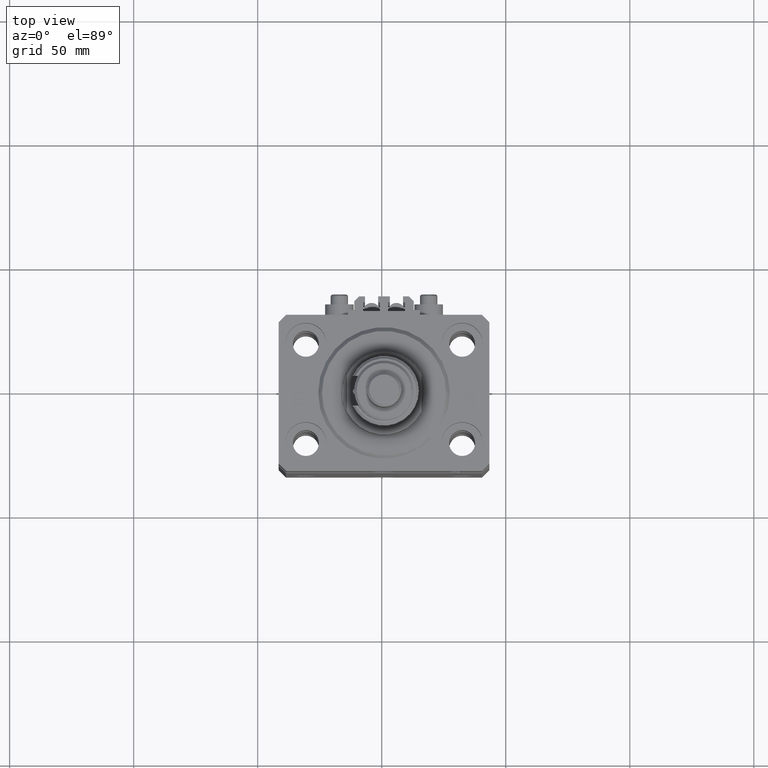
[diagram: clean part render]
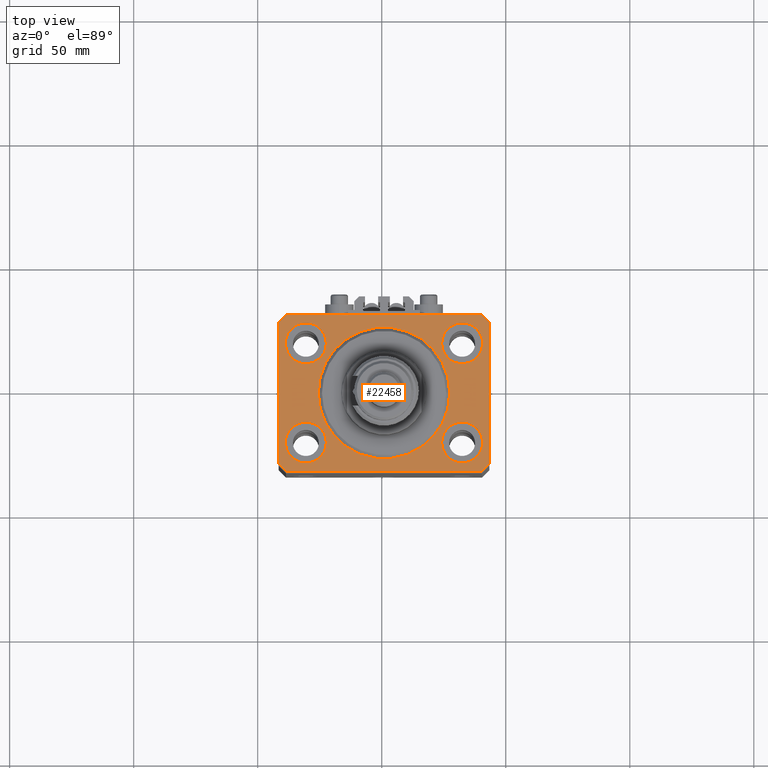
[diagram: same view with one face highlighted and labeled with its STEP entity id]
A machine part, top view. The second image highlights one B-rep face of the part: STEP entity #22458.
In plain terms, the highlighted planar face has unit normal (0, 0, 1).
Its self-contained STEP definition (entity closure, byte-faithful):
#40 = ORIENTED_EDGE ( 'NONE', *, *, #21736, .F. ) ;
#351 = CARTESIAN_POINT ( 'NONE',  ( 23.25000000000000355, 20.00000000000001066, 0.000000000000000000 ) ) ;
#473 = FACE_BOUND ( 'NONE', #27221, .T. ) ;
#603 = CARTESIAN_POINT ( 'NONE',  ( 39.50000000000000711, -31.50000000000000000, 0.000000000000000000 ) ) ;
#1393 = VERTEX_POINT ( 'NONE', #603 ) ;
#1399 = VERTEX_POINT ( 'NONE', #41322 ) ;
#1612 = CARTESIAN_POINT ( 'NONE',  ( 39.50000000000056843, 31.50000000000000000, 0.000000000000000000 ) ) ;
#1646 = CARTESIAN_POINT ( 'NONE',  ( -39.75000000000000000, -20.00000000000000000, 0.000000000000000000 ) ) ;
#2142 = ORIENTED_EDGE ( 'NONE', *, *, #19518, .F. ) ;
#2526 = VERTEX_POINT ( 'NONE', #1646 ) ;
#3470 = EDGE_CURVE ( 'NONE', #17507, #26038, #37037, .T. ) ;
#4547 = CIRCLE ( 'NONE', #31584, 8.250000000000000000 ) ;
#4761 = ORIENTED_EDGE ( 'NONE', *, *, #51596, .T. ) ;
#5395 = CARTESIAN_POINT ( 'NONE',  ( 42.50000000000051870, 28.49999999999995381, 0.000000000000000000 ) ) ;
#5596 = DIRECTION ( 'NONE',  ( 0.7071067811865471286, -0.7071067811865479058, 0.000000000000000000 ) ) ;
#5973 = EDGE_CURVE ( 'NONE', #30997, #28055, #33611, .T. ) ;
#6270 = DIRECTION ( 'NONE',  ( 1.000000000000000000, 0.000000000000000000, 0.000000000000000000 ) ) ;
#6455 = AXIS2_PLACEMENT_3D ( 'NONE', #34443, #25982, #50829 ) ;
#6528 = ORIENTED_EDGE ( 'NONE', *, *, #33068, .T. ) ;
#6582 = AXIS2_PLACEMENT_3D ( 'NONE', #10785, #7348, #47267 ) ;
#6803 = CARTESIAN_POINT ( 'NONE',  ( 39.50000000000000711, -31.50000000000000000, 0.000000000000000000 ) ) ;
#7240 = DIRECTION ( 'NONE',  ( 0.000000000000000000, 0.000000000000000000, 1.000000000000000000 ) ) ;
#7348 = DIRECTION ( 'NONE',  ( 0.000000000000000000, 0.000000000000000000, 1.000000000000000000 ) ) ;
#7559 = DIRECTION ( 'NONE',  ( 0.000000000000000000, 0.000000000000000000, 1.000000000000000000 ) ) ;
#8147 = VERTEX_POINT ( 'NONE', #42236 ) ;
#8152 = VERTEX_POINT ( 'NONE', #22138 ) ;
#8155 = CARTESIAN_POINT ( 'NONE',  ( -23.25000000000000000, 20.00000000000000000, 0.000000000000000000 ) ) ;
#8461 = VERTEX_POINT ( 'NONE', #351 ) ;
#8774 = EDGE_CURVE ( 'NONE', #31759, #1393, #24103, .T. ) ;
#9598 = ORIENTED_EDGE ( 'NONE', *, *, #8774, .T. ) ;
#9760 = CARTESIAN_POINT ( 'NONE',  ( 31.50000000000000000, 20.00000000000001066, 0.000000000000000000 ) ) ;
#10785 = CARTESIAN_POINT ( 'NONE',  ( 31.50000000000000000, -20.00000000000000000, 0.000000000000000000 ) ) ;
#10794 = DIRECTION ( 'NONE',  ( 1.000000000000000000, 0.000000000000000000, 0.000000000000000000 ) ) ;
#10932 = EDGE_LOOP ( 'NONE', ( #11153, #27754, #39970, #12039, #9598, #4761, #11896, #6528 ) ) ;
#11153 = ORIENTED_EDGE ( 'NONE', *, *, #5973, .T. ) ;
#11896 = ORIENTED_EDGE ( 'NONE', *, *, #3470, .T. ) ;
#12039 = ORIENTED_EDGE ( 'NONE', *, *, #19906, .T. ) ;
#12512 = VECTOR ( 'NONE', #29454, 1000.000000000000114 ) ;
#12630 = FACE_BOUND ( 'NONE', #21557, .T. ) ;
#12999 = AXIS2_PLACEMENT_3D ( 'NONE', #35036, #19954, #15205 ) ;
#14126 = CARTESIAN_POINT ( 'NONE',  ( -39.50000000000000711, 31.50000000000000000, 0.000000000000000000 ) ) ;
#14855 = ORIENTED_EDGE ( 'NONE', *, *, #24727, .F. ) ;
#15205 = DIRECTION ( 'NONE',  ( 1.000000000000000000, 0.000000000000000000, 0.000000000000000000 ) ) ;
#15556 = CARTESIAN_POINT ( 'NONE',  ( -42.50000000000000000, 28.50000000000000000, 0.000000000000000000 ) ) ;
#15558 = CARTESIAN_POINT ( 'NONE',  ( 0.000000000000000000, 0.000000000000000000, 0.000000000000000000 ) ) ;
#15578 = CIRCLE ( 'NONE', #29048, 8.250000000000000000 ) ;
#15736 = CIRCLE ( 'NONE', #6455, 8.250000000000000000 ) ;
#15767 = VERTEX_POINT ( 'NONE', #37650 ) ;
#16434 = CARTESIAN_POINT ( 'NONE',  ( 42.50000000000000711, -28.50000000000000355, 0.000000000000000000 ) ) ;
#16596 = FACE_BOUND ( 'NONE', #38562, .T. ) ;
#16622 = VERTEX_POINT ( 'NONE', #47721 ) ;
#16882 = VECTOR ( 'NONE', #24888, 1000.000000000000000 ) ;
#17507 = VERTEX_POINT ( 'NONE', #45058 ) ;
#18418 = EDGE_CURVE ( 'NONE', #28055, #45527, #42424, .T. ) ;
#18771 = ORIENTED_EDGE ( 'NONE', *, *, #42308, .F. ) ;
#18835 = VERTEX_POINT ( 'NONE', #49221 ) ;
#18874 = AXIS2_PLACEMENT_3D ( 'NONE', #44704, #21158, #29351 ) ;
#19518 = EDGE_CURVE ( 'NONE', #8147, #18835, #34889, .T. ) ;
#19717 = AXIS2_PLACEMENT_3D ( 'NONE', #51458, #39055, #6270 ) ;
#19906 = EDGE_CURVE ( 'NONE', #16622, #31759, #35308, .T. ) ;
#19954 = DIRECTION ( 'NONE',  ( 0.000000000000000000, 0.000000000000000000, 1.000000000000000000 ) ) ;
#20463 = EDGE_CURVE ( 'NONE', #45527, #16622, #23755, .T. ) ;
#20849 = EDGE_LOOP ( 'NONE', ( #29794, #45590 ) ) ;
#21042 = CARTESIAN_POINT ( 'NONE',  ( -31.50000000000000000, 20.00000000000000000, 0.000000000000000000 ) ) ;
#21158 = DIRECTION ( 'NONE',  ( 0.000000000000000000, 0.000000000000000000, 1.000000000000000000 ) ) ;
#21557 = EDGE_LOOP ( 'NONE', ( #14855, #21681 ) ) ;
#21681 = ORIENTED_EDGE ( 'NONE', *, *, #46703, .F. ) ;
#21736 = EDGE_CURVE ( 'NONE', #8152, #50446, #4547, .T. ) ;
#22058 = LINE ( 'NONE', #5395, #12512 ) ;
#22138 = CARTESIAN_POINT ( 'NONE',  ( -39.75000000000000000, 20.00000000000000000, 0.000000000000000000 ) ) ;
#22275 = CIRCLE ( 'NONE', #51809, 8.249999999999992895 ) ;
#22458 = ADVANCED_FACE ( 'NONE', ( #36688, #473, #12630, #16596, #51773, #32726 ), #48847, .T. ) ;
#22846 = DIRECTION ( 'NONE',  ( -0.7071067811865471286, -0.7071067811865479058, 0.000000000000000000 ) ) ;
#22970 = DIRECTION ( 'NONE',  ( 0.000000000000000000, 0.000000000000000000, 1.000000000000000000 ) ) ;
#23430 = EDGE_CURVE ( 'NONE', #18835, #8147, #32377, .T. ) ;
#23755 = LINE ( 'NONE', #15556, #24790 ) ;
#24103 = LINE ( 'NONE', #24353, #24557 ) ;
#24174 = CARTESIAN_POINT ( 'NONE',  ( 23.25000000000000355, -20.00000000000000000, 0.000000000000000000 ) ) ;
#24353 = CARTESIAN_POINT ( 'NONE',  ( -39.50000000000000711, -31.50000000000000000, 0.000000000000000000 ) ) ;
#24557 = VECTOR ( 'NONE', #41015, 1000.000000000000000 ) ;
#24727 = EDGE_CURVE ( 'NONE', #41060, #8461, #44271, .T. ) ;
#24754 = VECTOR ( 'NONE', #5596, 1000.000000000000000 ) ;
#24790 = VECTOR ( 'NONE', #35899, 1000.000000000000000 ) ;
#24888 = DIRECTION ( 'NONE',  ( 8.886653596232072440E-15, 1.000000000000000000, 0.000000000000000000 ) ) ;
#25695 = CARTESIAN_POINT ( 'NONE',  ( -42.50000000000000000, -28.50000000000000000, 0.000000000000000000 ) ) ;
#25881 = DIRECTION ( 'NONE',  ( 0.000000000000000000, 0.000000000000000000, 1.000000000000000000 ) ) ;
#25982 = DIRECTION ( 'NONE',  ( 0.000000000000000000, 0.000000000000000000, 1.000000000000000000 ) ) ;
#26038 = VERTEX_POINT ( 'NONE', #41628 ) ;
#26778 = ORIENTED_EDGE ( 'NONE', *, *, #30866, .F. ) ;
#27221 = EDGE_LOOP ( 'NONE', ( #18771, #27466 ) ) ;
#27398 = CARTESIAN_POINT ( 'NONE',  ( -31.50000000000000000, 20.00000000000000000, 0.000000000000000000 ) ) ;
#27466 = ORIENTED_EDGE ( 'NONE', *, *, #32477, .F. ) ;
#27676 = CIRCLE ( 'NONE', #6582, 8.249999999999992895 ) ;
#27754 = ORIENTED_EDGE ( 'NONE', *, *, #18418, .T. ) ;
#28055 = VERTEX_POINT ( 'NONE', #31509 ) ;
#28656 = VECTOR ( 'NONE', #30178, 1000.000000000000000 ) ;
#29048 = AXIS2_PLACEMENT_3D ( 'NONE', #47167, #7240, #39496 ) ;
#29351 = DIRECTION ( 'NONE',  ( 1.000000000000000000, 0.000000000000000000, 0.000000000000000000 ) ) ;
#29454 = DIRECTION ( 'NONE',  ( -0.7071067811865356934, 0.7071067811865594521, 0.000000000000000000 ) ) ;
#29794 = ORIENTED_EDGE ( 'NONE', *, *, #51228, .F. ) ;
#30068 = DIRECTION ( 'NONE',  ( 1.000000000000000000, 0.000000000000000000, -0.000000000000000000 ) ) ;
#30178 = DIRECTION ( 'NONE',  ( -1.000000000000000000, 0.000000000000000000, 0.000000000000000000 ) ) ;
#30866 = EDGE_CURVE ( 'NONE', #50446, #8152, #36872, .T. ) ;
#30997 = VERTEX_POINT ( 'NONE', #38218 ) ;
#31509 = CARTESIAN_POINT ( 'NONE',  ( -39.50000000000000711, 31.50000000000000000, 0.000000000000000000 ) ) ;
#31584 = AXIS2_PLACEMENT_3D ( 'NONE', #27398, #7559, #31894 ) ;
#31759 = VERTEX_POINT ( 'NONE', #36911 ) ;
#31894 = DIRECTION ( 'NONE',  ( 1.000000000000000000, 0.000000000000000000, 0.000000000000000000 ) ) ;
#32377 = CIRCLE ( 'NONE', #19717, 26.50000000000000355 ) ;
#32477 = EDGE_CURVE ( 'NONE', #51021, #1399, #27676, .T. ) ;
#32647 = VECTOR ( 'NONE', #51734, 1000.000000000000000 ) ;
#32726 = FACE_OUTER_BOUND ( 'NONE', #10932, .T. ) ;
#32949 = DIRECTION ( 'NONE',  ( 1.000000000000000000, 0.000000000000000000, 0.000000000000000000 ) ) ;
#33068 = EDGE_CURVE ( 'NONE', #26038, #30997, #22058, .T. ) ;
#33611 = LINE ( 'NONE', #1612, #28656 ) ;
#34443 = CARTESIAN_POINT ( 'NONE',  ( -31.50000000000000000, -20.00000000000000000, 0.000000000000000000 ) ) ;
#34889 = CIRCLE ( 'NONE', #45844, 26.50000000000000355 ) ;
#35036 = CARTESIAN_POINT ( 'NONE',  ( 31.50000000000000000, 20.00000000000001066, 0.000000000000000000 ) ) ;
#35308 = LINE ( 'NONE', #25695, #24754 ) ;
#35899 = DIRECTION ( 'NONE',  ( 0.000000000000000000, -1.000000000000000000, 0.000000000000000000 ) ) ;
#36291 = ORIENTED_EDGE ( 'NONE', *, *, #23430, .F. ) ;
#36688 = FACE_BOUND ( 'NONE', #20849, .T. ) ;
#36872 = CIRCLE ( 'NONE', #47043, 8.250000000000000000 ) ;
#36911 = CARTESIAN_POINT ( 'NONE',  ( -39.50000000000000711, -31.50000000000000000, 0.000000000000000000 ) ) ;
#37037 = LINE ( 'NONE', #16434, #16882 ) ;
#37457 = DIRECTION ( 'NONE',  ( 0.000000000000000000, 0.000000000000000000, 1.000000000000000000 ) ) ;
#37650 = CARTESIAN_POINT ( 'NONE',  ( -23.25000000000000000, -20.00000000000000000, 0.000000000000000000 ) ) ;
#38218 = CARTESIAN_POINT ( 'NONE',  ( 39.50000000000056843, 31.50000000000000000, 0.000000000000000000 ) ) ;
#38312 = CIRCLE ( 'NONE', #18874, 8.249999999999992895 ) ;
#38562 = EDGE_LOOP ( 'NONE', ( #26778, #40 ) ) ;
#39055 = DIRECTION ( 'NONE',  ( 0.000000000000000000, 0.000000000000000000, 1.000000000000000000 ) ) ;
#39355 = CARTESIAN_POINT ( 'NONE',  ( 0.000000000000000000, 0.000000000000000000, 0.000000000000000000 ) ) ;
#39496 = DIRECTION ( 'NONE',  ( 1.000000000000000000, 0.000000000000000000, 0.000000000000000000 ) ) ;
#39970 = ORIENTED_EDGE ( 'NONE', *, *, #20463, .T. ) ;
#40135 = CARTESIAN_POINT ( 'NONE',  ( -42.50000000000000000, 28.50000000000000000, 0.000000000000000000 ) ) ;
#41015 = DIRECTION ( 'NONE',  ( 1.000000000000000000, 0.000000000000000000, 0.000000000000000000 ) ) ;
#41060 = VERTEX_POINT ( 'NONE', #44939 ) ;
#41322 = CARTESIAN_POINT ( 'NONE',  ( 39.74999999999999289, -20.00000000000000000, 0.000000000000000000 ) ) ;
#41628 = CARTESIAN_POINT ( 'NONE',  ( 42.50000000000051870, 28.49999999999995381, 0.000000000000000000 ) ) ;
#41940 = DIRECTION ( 'NONE',  ( 0.000000000000000000, 0.000000000000000000, 1.000000000000000000 ) ) ;
#42024 = DIRECTION ( 'NONE',  ( 1.000000000000000000, 0.000000000000000000, 0.000000000000000000 ) ) ;
#42236 = CARTESIAN_POINT ( 'NONE',  ( -26.50000000000000355, 3.245314017740486554E-15, 0.000000000000000000 ) ) ;
#42308 = EDGE_CURVE ( 'NONE', #1399, #51021, #38312, .T. ) ;
#42424 = LINE ( 'NONE', #14126, #44945 ) ;
#42783 = LINE ( 'NONE', #6803, #32647 ) ;
#43445 = AXIS2_PLACEMENT_3D ( 'NONE', #15558, #37457, #30068 ) ;
#44271 = CIRCLE ( 'NONE', #12999, 8.249999999999992895 ) ;
#44704 = CARTESIAN_POINT ( 'NONE',  ( 31.50000000000000000, -20.00000000000000000, 0.000000000000000000 ) ) ;
#44939 = CARTESIAN_POINT ( 'NONE',  ( 39.74999999999999289, 20.00000000000001066, 0.000000000000000000 ) ) ;
#44945 = VECTOR ( 'NONE', #22846, 1000.000000000000000 ) ;
#45058 = CARTESIAN_POINT ( 'NONE',  ( 42.50000000000000711, -28.50000000000000355, 0.000000000000000000 ) ) ;
#45527 = VERTEX_POINT ( 'NONE', #40135 ) ;
#45590 = ORIENTED_EDGE ( 'NONE', *, *, #47217, .F. ) ;
#45844 = AXIS2_PLACEMENT_3D ( 'NONE', #39355, #22970, #10794 ) ;
#46703 = EDGE_CURVE ( 'NONE', #8461, #41060, #22275, .T. ) ;
#47043 = AXIS2_PLACEMENT_3D ( 'NONE', #21042, #41940, #32949 ) ;
#47167 = CARTESIAN_POINT ( 'NONE',  ( -31.50000000000000000, -20.00000000000000000, 0.000000000000000000 ) ) ;
#47217 = EDGE_CURVE ( 'NONE', #2526, #15767, #15578, .T. ) ;
#47267 = DIRECTION ( 'NONE',  ( 1.000000000000000000, 0.000000000000000000, 0.000000000000000000 ) ) ;
#47721 = CARTESIAN_POINT ( 'NONE',  ( -42.50000000000000000, -28.50000000000000000, 0.000000000000000000 ) ) ;
#48847 = PLANE ( 'NONE',  #43445 ) ;
#49221 = CARTESIAN_POINT ( 'NONE',  ( 26.50000000000000355, 0.000000000000000000, 0.000000000000000000 ) ) ;
#50446 = VERTEX_POINT ( 'NONE', #8155 ) ;
#50829 = DIRECTION ( 'NONE',  ( 1.000000000000000000, 0.000000000000000000, 0.000000000000000000 ) ) ;
#51021 = VERTEX_POINT ( 'NONE', #24174 ) ;
#51228 = EDGE_CURVE ( 'NONE', #15767, #2526, #15736, .T. ) ;
#51458 = CARTESIAN_POINT ( 'NONE',  ( 0.000000000000000000, 0.000000000000000000, 0.000000000000000000 ) ) ;
#51596 = EDGE_CURVE ( 'NONE', #1393, #17507, #42783, .T. ) ;
#51734 = DIRECTION ( 'NONE',  ( 0.7071067811865483499, 0.7071067811865466846, 0.000000000000000000 ) ) ;
#51773 = FACE_BOUND ( 'NONE', #51957, .T. ) ;
#51809 = AXIS2_PLACEMENT_3D ( 'NONE', #9760, #25881, #42024 ) ;
#51957 = EDGE_LOOP ( 'NONE', ( #36291, #2142 ) ) ;